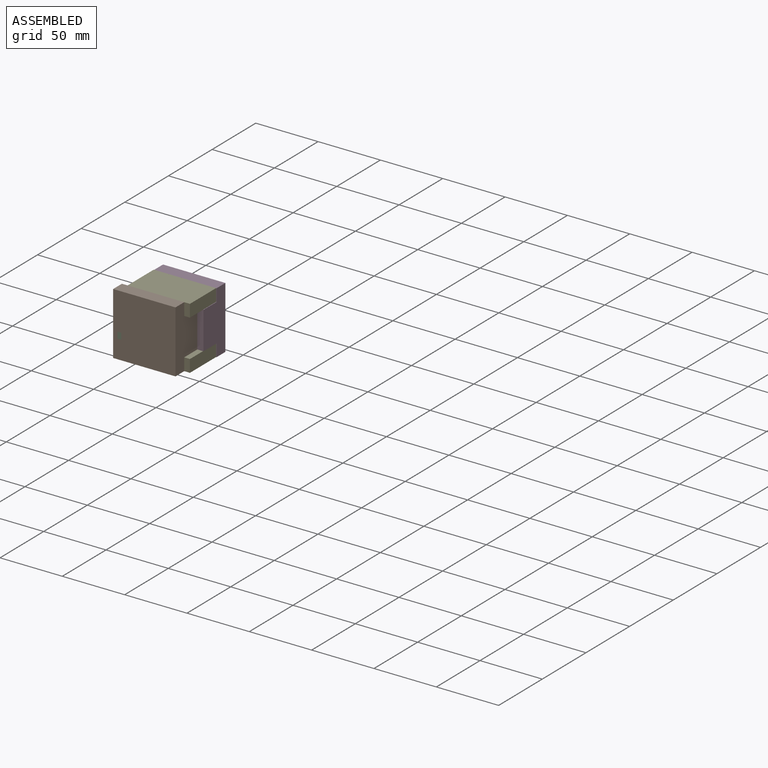
[diagram: assembled view]
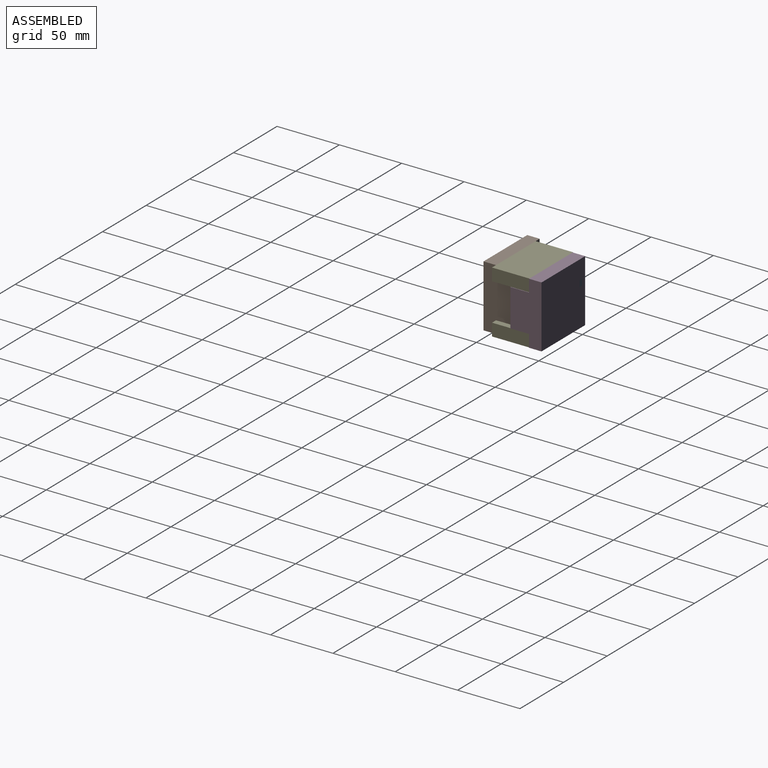
[diagram: assembled view, second angle]
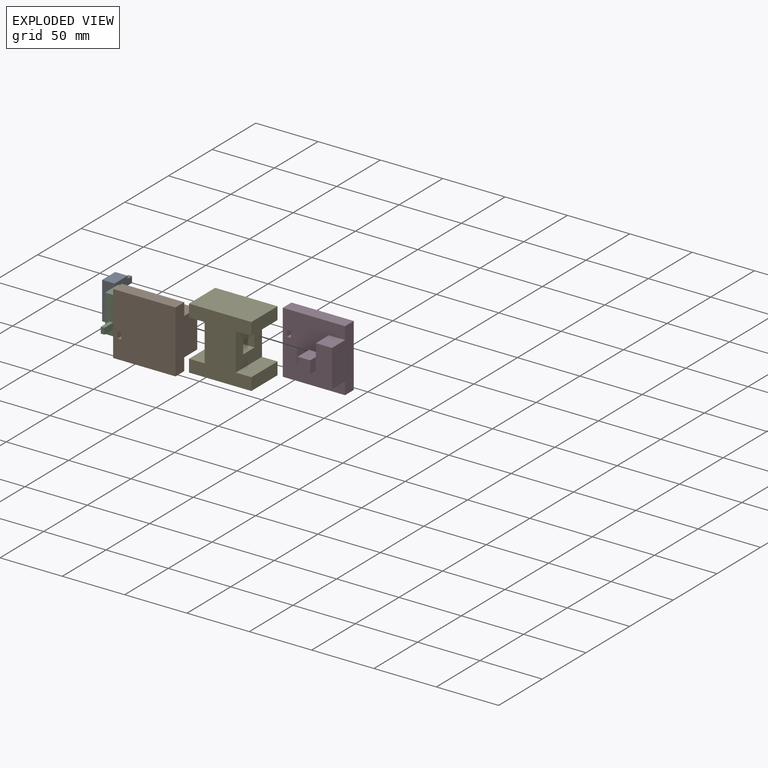
[diagram: exploded view]
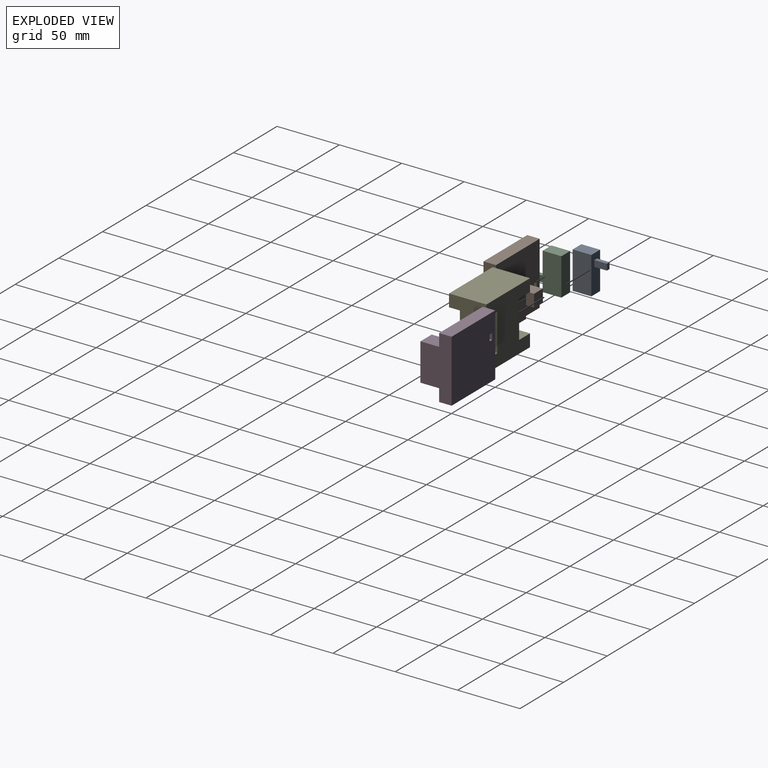
[diagram: exploded view, second angle]
ASSEMBLY  parts=5 mates=4
PART A: 11 faces, bbox 25x10x30 mm
  f0: plane 15x10mm, normal (0,0,-1), area 150mm2, adj f1,f3,f4,f5
  f1: plane 30x10mm, normal (1,0,0), area 300mm2, adj f0,f2,f4,f5
  f2: plane 15x10mm, normal (0,0,1), area 150mm2, adj f1,f3,f4,f5
  f3: plane 30x10mm, normal (-1,0,0), area 285mm2, adj f0,f2,f4,f5,f6,f7,f8,f9
  f4: plane 30x15mm, normal (0,1,0), area 450mm2, adj f0,f1,f2,f3
  f5: plane 30x15mm, normal (0,-1,0), area 450mm2, adj f0,f1,f2,f3
  f6: plane 10x5mm, normal (0,-1,0), area 50mm2, adj f3,f7,f9,f10
  f7: plane 10x3mm, normal (0,0,1), area 30mm2, adj f3,f6,f8,f10
  f8: plane 10x5mm, normal (0,1,0), area 50mm2, adj f3,f7,f9,f10
  f9: plane 10x3mm, normal (0,0,-1), area 30mm2, adj f3,f6,f8,f10
  f10: plane 5x3mm, normal (-1,0,0), area 15mm2, adj f6,f7,f8,f9
PART B: 20 faces, bbox 50x31.5x50 mm
  f0: plane 30x12.91mm, normal (0,-1,0), area 387.2mm2, adj f2,f3,f4,f5,f14
  f1: plane 50x10mm, normal (-1,0,0), area 500mm2, adj f6,f7,f8,f9
  f2: plane 30x15mm, normal (-1,0,0), area 385mm2, adj f0,f4,f5,f9,f10,f11,f12
  f3: plane 50x25mm, normal (1,0,0), area 950mm2, adj f0,f4,f5,f6,f7,f8,f9
  f4: plane 15x12.91mm, normal (0,0,1), area 193.6mm2, adj f0,f2,f3,f9
  f5: plane 15x12.91mm, normal (0,0,-1), area 193.6mm2, adj f0,f2,f3,f9
  f6: plane 50x50mm, normal (0,1,0), area 2485mm2, adj f1,f3,f7,f8,f16,f17,f18,f19
  f7: plane 50x10mm, normal (0,0,-1), area 500mm2, adj f1,f3,f6,f9
  f8: plane 50x10mm, normal (0,0,1), area 500mm2, adj f1,f3,f6,f9
  f9: plane 50x50mm, normal (0,-1,0), area 2097.8mm2, adj f1,f2,f3,f4,f5,f7,f8,f16
  f10: plane 10x10mm, normal (0,1,0), area 100mm2, adj f2,f11,f12,f13
  f11: plane 13x10mm, normal (0,0,-1), area 130mm2, adj f2,f10,f13,f14,f15
  f12: plane 13x10mm, normal (0,0,1), area 130mm2, adj f2,f10,f13,f14,f15
  f13: plane 13x10mm, normal (-1,0,0), area 130mm2, adj f10,f11,f12,f15
  f14: plane 10x6.5mm, normal (1,0,0), area 65mm2, adj f0,f11,f12,f15
  f15: plane 10x10mm, normal (0,-1,0), area 100mm2, adj f11,f12,f13,f14
  f16: plane 10x5mm, normal (-1,0,0), area 50mm2, adj f6,f9,f17,f19
  f17: plane 10x3mm, normal (0,0,-1), area 30mm2, adj f6,f9,f16,f18
  f18: plane 10x5mm, normal (1,0,0), area 50mm2, adj f6,f9,f17,f19
  f19: plane 10x3mm, normal (0,0,1), area 30mm2, adj f6,f9,f16,f18
PART C: same geometry as A
PART D: same geometry as B
PART E: 24 faces, bbox 50x30x50 mm
  f0: plane 30x30mm, normal (1,0,0), area 770mm2, adj f8,f9,f12,f13,f19,f20,f21,f22
  f1: plane 30x30mm, normal (-1,0,0), area 770mm2, adj f3,f4,f12,f13,f14,f15,f16,f17
  f2: plane 30x10mm, normal (-1,0,0), area 300mm2, adj f3,f11,f12,f13
  f3: plane 30x12.5mm, normal (0,0,-1), area 375mm2, adj f1,f2,f12,f13
  f4: plane 30x12.5mm, normal (0,0,1), area 375mm2, adj f1,f5,f12,f13
  f5: plane 30x10mm, normal (-1,0,0), area 300mm2, adj f4,f6,f12,f13
  f6: plane 50x30mm, normal (0,0,-1), area 1500mm2, adj f5,f7,f12,f13
  f7: plane 30x10mm, normal (1,0,0), area 300mm2, adj f6,f8,f12,f13
  f8: plane 30x12.5mm, normal (0,0,1), area 375mm2, adj f0,f7,f12,f13
  f9: plane 30x12.5mm, normal (0,0,-1), area 375mm2, adj f0,f10,f12,f13
  f10: plane 30x10mm, normal (1,0,0), area 300mm2, adj f9,f11,f12,f13
  f11: plane 50x30mm, normal (0,0,1), area 1500mm2, adj f2,f10,f12,f13
  f12: plane 50x50mm, normal (0,-1,0), area 1750mm2, adj f0,f1,f2,f3,f4,f5,f6,f7
  f13: plane 50x50mm, normal (0,1,0), area 1750mm2, adj f0,f1,f2,f3,f4,f5,f6,f7
  f14: plane 13x10mm, normal (0,0,-1), area 130mm2, adj f1,f15,f17,f18
  f15: plane 10x10mm, normal (0,-1,0), area 100mm2, adj f1,f14,f16,f18
  f16: plane 13x10mm, normal (0,0,1), area 130mm2, adj f1,f15,f17,f18
  f17: plane 10x10mm, normal (0,1,0), area 100mm2, adj f1,f14,f16,f18
  f18: plane 13x10mm, normal (-1,0,0), area 130mm2, adj f14,f15,f16,f17
  f19: plane 13x10mm, normal (0,0,1), area 130mm2, adj f0,f20,f22,f23
  f20: plane 10x10mm, normal (0,-1,0), area 100mm2, adj f0,f19,f21,f23
  f21: plane 13x10mm, normal (0,0,-1), area 130mm2, adj f0,f20,f22,f23
  f22: plane 10x10mm, normal (0,1,0), area 100mm2, adj f0,f19,f21,f23
  f23: plane 13x10mm, normal (1,0,0), area 130mm2, adj f19,f20,f21,f22
PLACE A rot(axis=(0,0,-1),90deg) t=(-60.64,27.3,-9.11)mm
PLACE B rot(axis=(1,0,0),180deg) t=(-40.64,-5.2,-9.11)mm
PLACE C rot(axis=(-0.71,-0.71,0),180deg) t=(-65.64,12.3,-9.11)mm
PLACE D t=(-35.64,44.8,-9.11)mm
PLACE E t=(-23.55,34.8,5.89)mm
MATE fastened C.f8 <-> B.f16  axis (1,0,0) through (-59.14,-0.2,-16.61)mm
MATE fastened A.f8 <-> D.f16  axis (1,0,0) through (-54.14,39.8,-1.61)mm
MATE fastened E.f23 <-> D.f13  axis (1,0,0) through (-33.55,19.8,-9.11)mm
MATE fastened E.f18 <-> B.f13  axis (-1,0,0) through (-38.55,19.8,-9.11)mm
